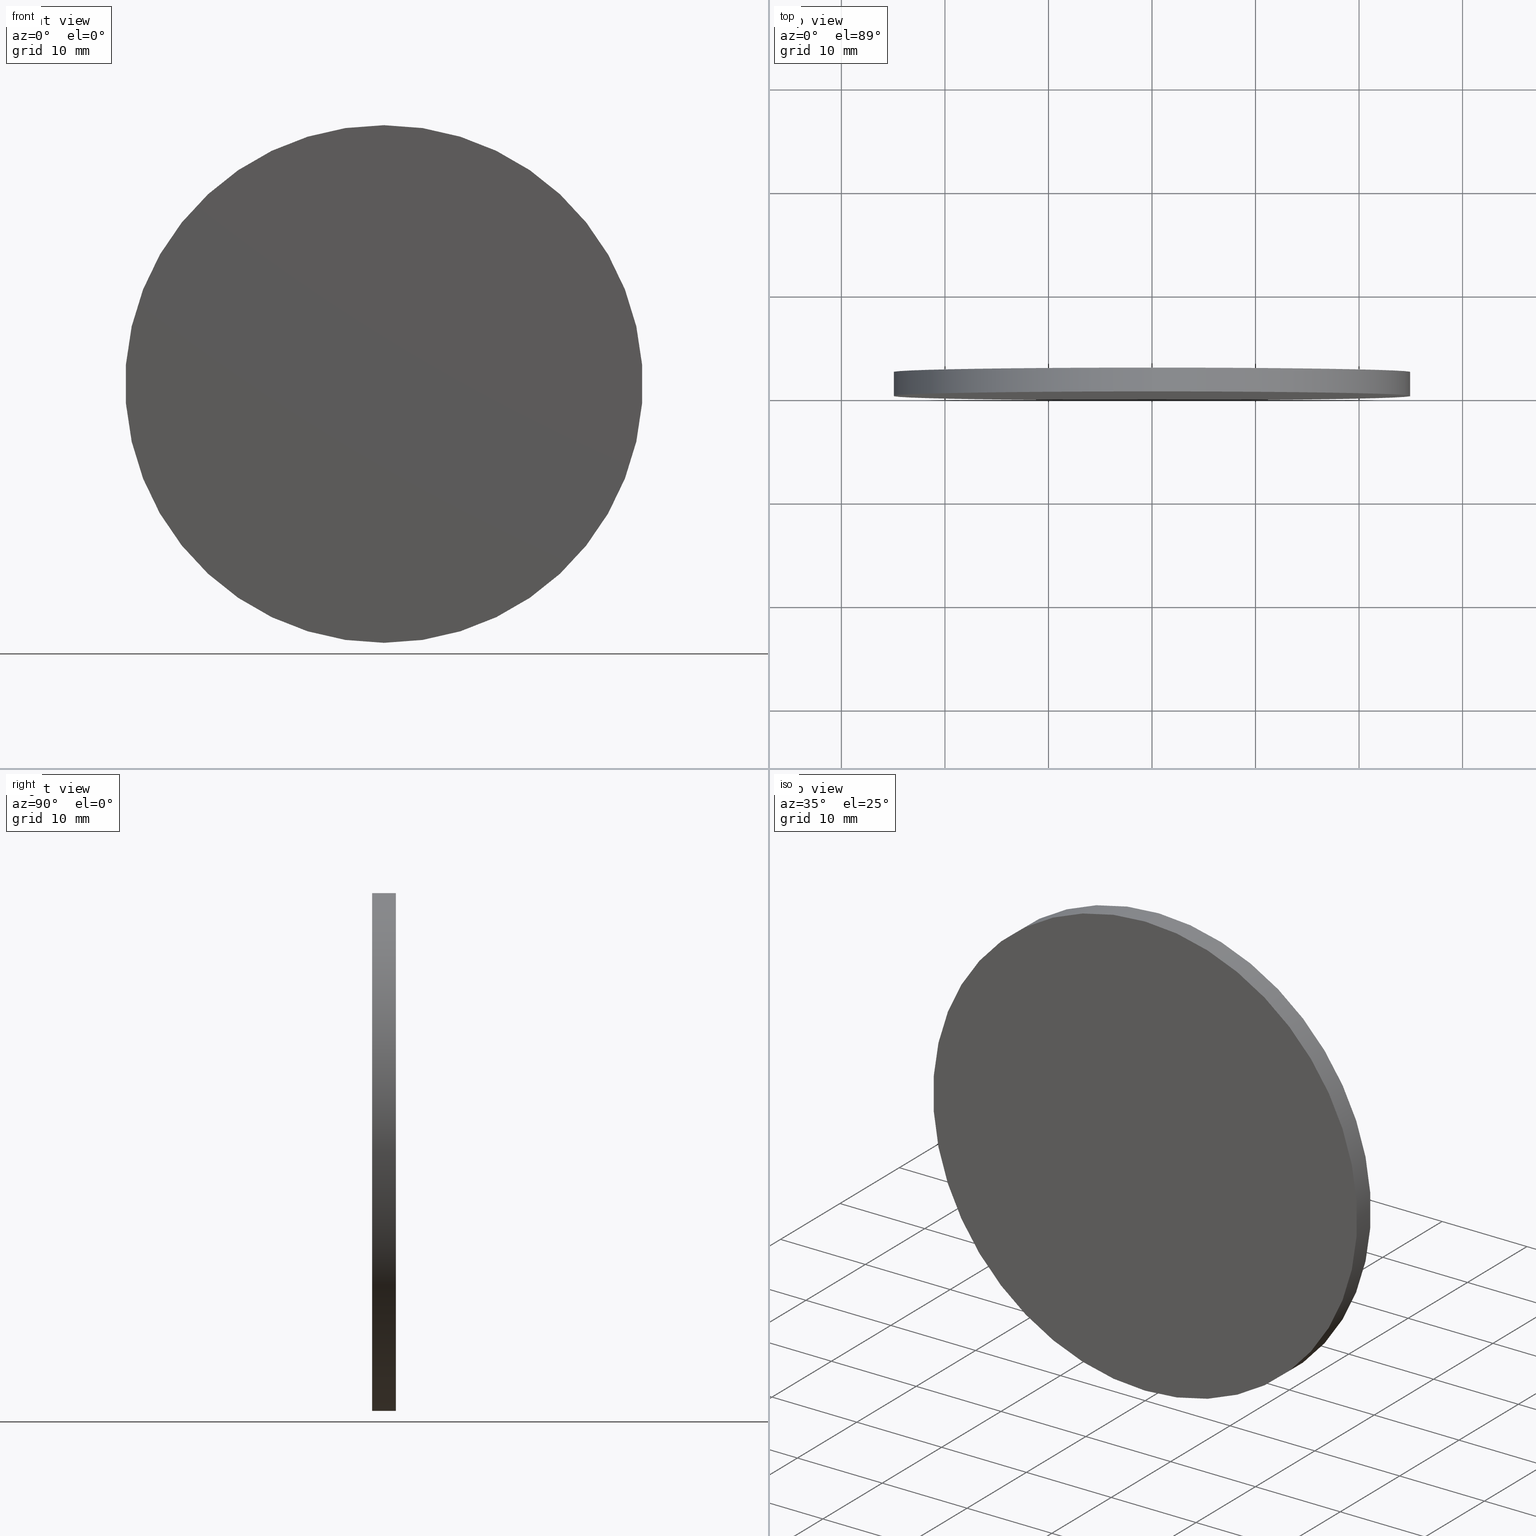
[diagram: canonical four-view strip — front | top / right | iso, engineering-drawing reading convention]
A machine part, canonical four-view strip (front | top / right | iso — engineering-drawing reading convention). The complete STEP part file that produces these views, byte-faithful:
ISO-10303-21;
HEADER;
FILE_DESCRIPTION (( 'STEP AP214' ),
    '1' );
FILE_NAME ('248604.STEP',
    '2019-08-06T05:37:05',
    ( 'user' ),
    ( '΢���й�' ),
    'SwSTEP 2.0',
    'SolidWorks 2016',
    '' );
FILE_SCHEMA (( 'AUTOMOTIVE_DESIGN' ));
ENDSEC;

DATA;
#1 = ORIENTED_EDGE ( 'NONE', *, *, #31, .T. ) ;
#2 = FACE_OUTER_BOUND ( 'NONE', #61, .T. ) ;
#3 = VECTOR ( 'NONE', #41, 1000.000000000000000 ) ;
#4 = CARTESIAN_POINT ( 'NONE',  ( 0.0000000000000000000, 2.299999999999999800, 0.0000000000000000000 ) ) ;
#5 = CARTESIAN_POINT ( 'NONE',  ( 0.0000000000000000000, 2.299999999999999800, 0.0000000000000000000 ) ) ;
#6 = SURFACE_STYLE_USAGE ( .BOTH. , #56 ) ;
#7 = MECHANICAL_DESIGN_GEOMETRIC_PRESENTATION_REPRESENTATION (  '', ( #121 ), #35 ) ;
#8 = CARTESIAN_POINT ( 'NONE',  ( 0.0000000000000000000, 0.0000000000000000000, 0.0000000000000000000 ) ) ;
#9 = ORIENTED_EDGE ( 'NONE', *, *, #51, .F. ) ;
#10 =( NAMED_UNIT ( * ) PLANE_ANGLE_UNIT ( ) SI_UNIT ( $, .RADIAN. ) );
#11 = EDGE_CURVE ( 'NONE', #98, #109, #140, .T. ) ;
#12 = AXIS2_PLACEMENT_3D ( 'NONE', #22, #34, #15 ) ;
#13 = VERTEX_POINT ( 'NONE', #107 ) ;
#14 = FILL_AREA_STYLE ('',( #47 ) ) ;
#15 = DIRECTION ( 'NONE',  ( 0.0000000000000000000, 0.0000000000000000000, 1.000000000000000000 ) ) ;
#16 = APPLICATION_PROTOCOL_DEFINITION ( 'draft international standard', 'automotive_design', 1998, #37 ) ;
#17 = CARTESIAN_POINT ( 'NONE',  ( 0.0000000000000000000, 0.0000000000000000000, 0.0000000000000000000 ) ) ;
#18 = ADVANCED_FACE ( 'NONE', ( #93 ), #28, .T. ) ;
#19 = AXIS2_PLACEMENT_3D ( 'NONE', #5, #112, #50 ) ;
#20 = EDGE_LOOP ( 'NONE', ( #79, #42, #39, #54 ) ) ;
#21 = SURFACE_STYLE_FILL_AREA ( #24 ) ;
#22 = CARTESIAN_POINT ( 'NONE',  ( 0.0000000000000000000, 0.0000000000000000000, 0.0000000000000000000 ) ) ;
#23 = ORIENTED_EDGE ( 'NONE', *, *, #67, .T. ) ;
#24 = FILL_AREA_STYLE ('',( #136 ) ) ;
#25 = AXIS2_PLACEMENT_3D ( 'NONE', #4, #95, #138 ) ;
#26 = PRODUCT_DEFINITION_CONTEXT ( 'detailed design', #37, 'design' ) ;
#27 = AXIS2_PLACEMENT_3D ( 'NONE', #46, #62, #72 ) ;
#28 = CYLINDRICAL_SURFACE ( 'NONE', #19, 25.00000000000000000 ) ;
#29 = CARTESIAN_POINT ( 'NONE',  ( 0.0000000000000000000, 0.0000000000000000000, 0.0000000000000000000 ) ) ;
#30 = SHAPE_DEFINITION_REPRESENTATION ( #59, #91 ) ;
#31 = EDGE_CURVE ( 'NONE', #109, #104, #113, .T. ) ;
#32 = STYLED_ITEM ( 'NONE', ( #134 ), #91 ) ;
#33 = EDGE_LOOP ( 'NONE', ( #83, #122 ) ) ;
#34 = DIRECTION ( 'NONE',  ( 0.0000000000000000000, 1.000000000000000000, 0.0000000000000000000 ) ) ;
#35 =( GEOMETRIC_REPRESENTATION_CONTEXT ( 3 ) GLOBAL_UNCERTAINTY_ASSIGNED_CONTEXT ( ( #106 ) ) GLOBAL_UNIT_ASSIGNED_CONTEXT ( ( #75, #10, #85 ) ) REPRESENTATION_CONTEXT ( 'NONE', 'WORKASPACE' ) );
#36 = CARTESIAN_POINT ( 'NONE',  ( 0.0000000000000000000, 2.299999999999999800, 0.0000000000000000000 ) ) ;
#37 = APPLICATION_CONTEXT ( 'automotive_design' ) ;
#38 = CARTESIAN_POINT ( 'NONE',  ( 0.0000000000000000000, 2.299999999999999800, 0.0000000000000000000 ) ) ;
#39 = ORIENTED_EDGE ( 'NONE', *, *, #102, .T. ) ;
#40 = DIRECTION ( 'NONE',  ( 0.0000000000000000000, 1.000000000000000000, 0.0000000000000000000 ) ) ;
#41 = DIRECTION ( 'NONE',  ( -0.0000000000000000000, -1.000000000000000000, -0.0000000000000000000 ) ) ;
#42 = ORIENTED_EDGE ( 'NONE', *, *, #67, .F. ) ;
#43 = EDGE_LOOP ( 'NONE', ( #9, #132, #1, #118 ) ) ;
#44 = AXIS2_PLACEMENT_3D ( 'NONE', #8, #58, #137 ) ;
#45 = DIRECTION ( 'NONE',  ( 0.0000000000000000000, 0.0000000000000000000, 1.000000000000000000 ) ) ;
#46 = CARTESIAN_POINT ( 'NONE',  ( 0.0000000000000000000, 2.299999999999999800, 0.0000000000000000000 ) ) ;
#47 = FILL_AREA_STYLE_COLOUR ( '', #124 ) ;
#48 = CARTESIAN_POINT ( 'NONE',  ( 0.0000000000000000000, 0.0000000000000000000, -25.00000000000000000 ) ) ;
#49 = AXIS2_PLACEMENT_3D ( 'NONE', #17, #45, #114 ) ;
#50 = DIRECTION ( 'NONE',  ( 0.0000000000000000000, 0.0000000000000000000, -1.000000000000000000 ) ) ;
#51 = EDGE_CURVE ( 'NONE', #98, #13, #55, .T. ) ;
#52 = CYLINDRICAL_SURFACE ( 'NONE', #27, 25.00000000000000000 ) ;
#53 = CLOSED_SHELL ( 'NONE', ( #125, #18, #126, #123 ) ) ;
#54 = ORIENTED_EDGE ( 'NONE', *, *, #116, .T. ) ;
#55 = CIRCLE ( 'NONE', #66, 25.00000000000000000 ) ;
#56 = SURFACE_SIDE_STYLE ('',( #21 ) ) ;
#57 =( NAMED_UNIT ( * ) PLANE_ANGLE_UNIT ( ) SI_UNIT ( $, .RADIAN. ) );
#58 = DIRECTION ( 'NONE',  ( 0.0000000000000000000, 1.000000000000000000, 0.0000000000000000000 ) ) ;
#59 = PRODUCT_DEFINITION_SHAPE ( 'NONE', 'NONE',  #89 ) ;
#60 = LINE ( 'NONE', #81, #87 ) ;
#61 = EDGE_LOOP ( 'NONE', ( #23, #74 ) ) ;
#62 = DIRECTION ( 'NONE',  ( -0.0000000000000000000, -1.000000000000000000, -0.0000000000000000000 ) ) ;
#63 = DIRECTION ( 'NONE',  ( 0.0000000000000000000, 0.0000000000000000000, 1.000000000000000000 ) ) ;
#64 = UNCERTAINTY_MEASURE_WITH_UNIT (LENGTH_MEASURE( 1.000000000000000100E-005 ), #82, 'distance_accuracy_value', 'NONE');
#65 = CIRCLE ( 'NONE', #12, 25.00000000000000000 ) ;
#66 = AXIS2_PLACEMENT_3D ( 'NONE', #36, #139, #63 ) ;
#67 = EDGE_CURVE ( 'NONE', #13, #98, #68, .T. ) ;
#68 = CIRCLE ( 'NONE', #25, 25.00000000000000000 ) ;
#69 = DIRECTION ( 'NONE',  ( 0.0000000000000000000, 0.0000000000000000000, 1.000000000000000000 ) ) ;
#70 = FACE_OUTER_BOUND ( 'NONE', #33, .T. ) ;
#71 =( NAMED_UNIT ( * ) SI_UNIT ( $, .STERADIAN. ) SOLID_ANGLE_UNIT ( ) );
#72 = DIRECTION ( 'NONE',  ( 0.0000000000000000000, 0.0000000000000000000, -1.000000000000000000 ) ) ;
#73 = MECHANICAL_DESIGN_GEOMETRIC_PRESENTATION_REPRESENTATION (  '', ( #32 ), #108 ) ;
#74 = ORIENTED_EDGE ( 'NONE', *, *, #51, .T. ) ;
#75 =( LENGTH_UNIT ( ) NAMED_UNIT ( * ) SI_UNIT ( .MILLI., .METRE. ) );
#76 = FACE_OUTER_BOUND ( 'NONE', #43, .T. ) ;
#77 = PRESENTATION_LAYER_ASSIGNMENT (  '', '', ( #121 ) ) ;
#78 = UNCERTAINTY_MEASURE_WITH_UNIT (LENGTH_MEASURE( 1.000000000000000100E-005 ), #128, 'distance_accuracy_value', 'NONE');
#79 = ORIENTED_EDGE ( 'NONE', *, *, #11, .F. ) ;
#80 = PRESENTATION_LAYER_ASSIGNMENT (  '', '', ( #32 ) ) ;
#81 = CARTESIAN_POINT ( 'NONE',  ( 0.0000000000000000000, 2.299999999999999800, -25.00000000000000000 ) ) ;
#82 =( LENGTH_UNIT ( ) NAMED_UNIT ( * ) SI_UNIT ( .MILLI., .METRE. ) );
#83 = ORIENTED_EDGE ( 'NONE', *, *, #116, .F. ) ;
#84 = DIRECTION ( 'NONE',  ( 0.0000000000000000000, -0.0000000000000000000, 1.000000000000000000 ) ) ;
#85 =( NAMED_UNIT ( * ) SI_UNIT ( $, .STERADIAN. ) SOLID_ANGLE_UNIT ( ) );
#86 = COLOUR_RGB ( '',1.000000000000000000, 1.000000000000000000, 1.000000000000000000 ) ;
#87 = VECTOR ( 'NONE', #131, 1000.000000000000000 ) ;
#88 =( GEOMETRIC_REPRESENTATION_CONTEXT ( 3 ) GLOBAL_UNCERTAINTY_ASSIGNED_CONTEXT ( ( #78 ) ) GLOBAL_UNIT_ASSIGNED_CONTEXT ( ( #128, #57, #115 ) ) REPRESENTATION_CONTEXT ( 'NONE', 'WORKASPACE' ) );
#89 = PRODUCT_DEFINITION ( 'δ֪', '', #110, #26 ) ;
#90 = CARTESIAN_POINT ( 'NONE',  ( 3.061616997868383000E-015, 2.299999999999999800, 25.00000000000000000 ) ) ;
#91 = ADVANCED_BREP_SHAPE_REPRESENTATION ( '248604', ( #117, #49 ), #88 ) ;
#92 = SURFACE_STYLE_FILL_AREA ( #14 ) ;
#93 = FACE_OUTER_BOUND ( 'NONE', #20, .T. ) ;
#94 = SURFACE_SIDE_STYLE ('',( #92 ) ) ;
#95 = DIRECTION ( 'NONE',  ( 0.0000000000000000000, 1.000000000000000000, 0.0000000000000000000 ) ) ;
#96 = APPLICATION_CONTEXT ( 'automotive_design' ) ;
#97 = DIRECTION ( 'NONE',  ( 0.0000000000000000000, 1.000000000000000000, 0.0000000000000000000 ) ) ;
#98 = VERTEX_POINT ( 'NONE', #90 ) ;
#99 = PRESENTATION_STYLE_ASSIGNMENT (( #111 ) ) ;
#100 = AXIS2_PLACEMENT_3D ( 'NONE', #29, #40, #69 ) ;
#101 = PLANE ( 'NONE',  #44 ) ;
#102 = EDGE_CURVE ( 'NONE', #13, #104, #60, .T. ) ;
#103 = APPLICATION_PROTOCOL_DEFINITION ( 'draft international standard', 'automotive_design', 1998, #96 ) ;
#104 = VERTEX_POINT ( 'NONE', #48 ) ;
#105 = PLANE ( 'NONE',  #133 ) ;
#106 = UNCERTAINTY_MEASURE_WITH_UNIT (LENGTH_MEASURE( 1.000000000000000100E-005 ), #75, 'distance_accuracy_value', 'NONE');
#107 = CARTESIAN_POINT ( 'NONE',  ( 0.0000000000000000000, 2.299999999999999800, -25.00000000000000000 ) ) ;
#108 =( GEOMETRIC_REPRESENTATION_CONTEXT ( 3 ) GLOBAL_UNCERTAINTY_ASSIGNED_CONTEXT ( ( #64 ) ) GLOBAL_UNIT_ASSIGNED_CONTEXT ( ( #82, #135, #71 ) ) REPRESENTATION_CONTEXT ( 'NONE', 'WORKASPACE' ) );
#109 = VERTEX_POINT ( 'NONE', #119 ) ;
#110 = PRODUCT_DEFINITION_FORMATION_WITH_SPECIFIED_SOURCE ( '�κ�', '', #130, .NOT_KNOWN. ) ;
#111 = SURFACE_STYLE_USAGE ( .BOTH. , #94 ) ;
#112 = DIRECTION ( 'NONE',  ( -0.0000000000000000000, -1.000000000000000000, -0.0000000000000000000 ) ) ;
#113 = CIRCLE ( 'NONE', #100, 25.00000000000000000 ) ;
#114 = DIRECTION ( 'NONE',  ( 1.000000000000000000, 0.0000000000000000000, 0.0000000000000000000 ) ) ;
#115 =( NAMED_UNIT ( * ) SI_UNIT ( $, .STERADIAN. ) SOLID_ANGLE_UNIT ( ) );
#116 = EDGE_CURVE ( 'NONE', #104, #109, #65, .T. ) ;
#117 = MANIFOLD_SOLID_BREP ( '͹̨-����1', #53 ) ;
#118 = ORIENTED_EDGE ( 'NONE', *, *, #102, .F. ) ;
#119 = CARTESIAN_POINT ( 'NONE',  ( 3.061616997868383000E-015, 0.0000000000000000000, 25.00000000000000000 ) ) ;
#120 = CARTESIAN_POINT ( 'NONE',  ( 3.061616997868383000E-015, 2.299999999999999800, 25.00000000000000000 ) ) ;
#121 = STYLED_ITEM ( 'NONE', ( #99 ), #117 ) ;
#122 = ORIENTED_EDGE ( 'NONE', *, *, #31, .F. ) ;
#123 = ADVANCED_FACE ( 'NONE', ( #70 ), #101, .F. ) ;
#124 = COLOUR_RGB ( '',1.000000000000000000, 1.000000000000000000, 1.000000000000000000 ) ;
#125 = ADVANCED_FACE ( 'NONE', ( #76 ), #52, .T. ) ;
#126 = ADVANCED_FACE ( 'NONE', ( #2 ), #105, .T. ) ;
#127 = PRODUCT_CONTEXT ( 'NONE', #96, 'mechanical' ) ;
#128 =( LENGTH_UNIT ( ) NAMED_UNIT ( * ) SI_UNIT ( .MILLI., .METRE. ) );
#129 = PRODUCT_RELATED_PRODUCT_CATEGORY ( 'part', '', ( #130 ) ) ;
#130 = PRODUCT ( '248604', '248604', '', ( #127 ) ) ;
#131 = DIRECTION ( 'NONE',  ( -0.0000000000000000000, -1.000000000000000000, -0.0000000000000000000 ) ) ;
#132 = ORIENTED_EDGE ( 'NONE', *, *, #11, .T. ) ;
#133 = AXIS2_PLACEMENT_3D ( 'NONE', #38, #97, #84 ) ;
#134 = PRESENTATION_STYLE_ASSIGNMENT (( #6 ) ) ;
#135 =( NAMED_UNIT ( * ) PLANE_ANGLE_UNIT ( ) SI_UNIT ( $, .RADIAN. ) );
#136 = FILL_AREA_STYLE_COLOUR ( '', #86 ) ;
#137 = DIRECTION ( 'NONE',  ( 0.0000000000000000000, -0.0000000000000000000, 1.000000000000000000 ) ) ;
#138 = DIRECTION ( 'NONE',  ( 0.0000000000000000000, 0.0000000000000000000, 1.000000000000000000 ) ) ;
#139 = DIRECTION ( 'NONE',  ( 0.0000000000000000000, 1.000000000000000000, 0.0000000000000000000 ) ) ;
#140 = LINE ( 'NONE', #120, #3 ) ;
ENDSEC;
END-ISO-10303-21;
